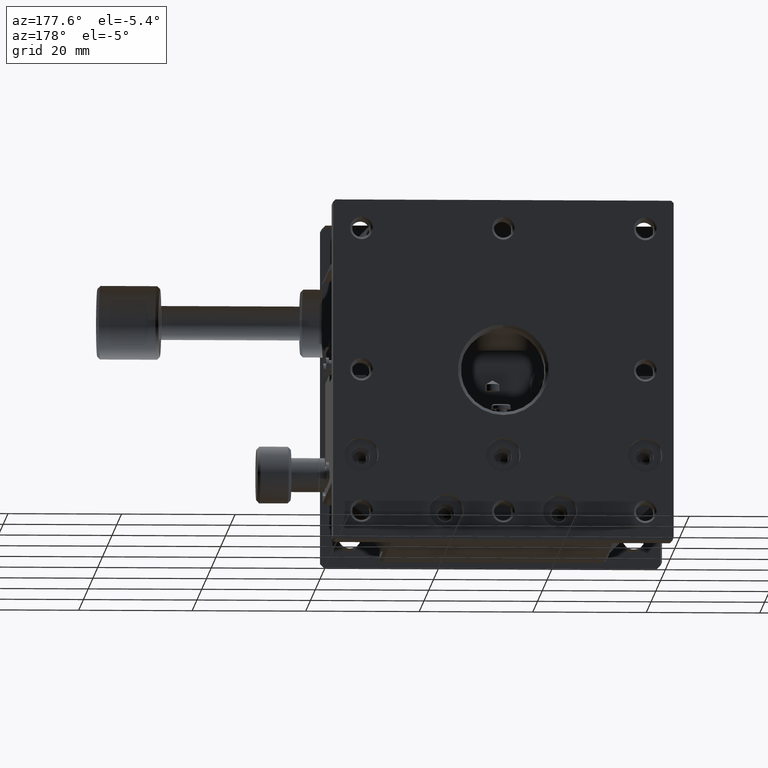
[diagram: clean part render]
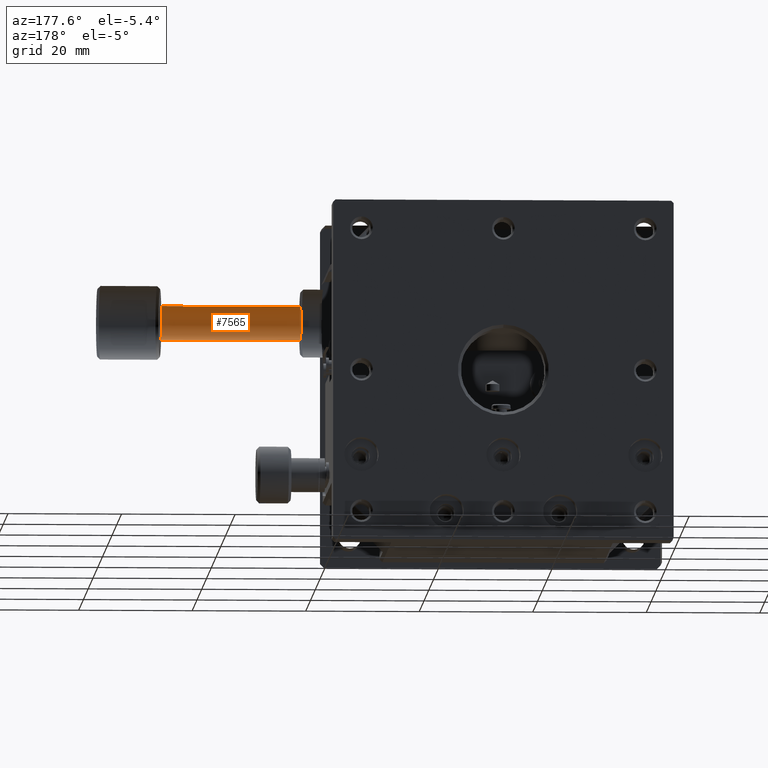
[diagram: same view with one face highlighted and labeled with its STEP entity id]
A machine part, auxiliary view. The second image highlights one B-rep face of the part: STEP entity #7565.
In plain terms, the highlighted cylindrical surface (bore or boss wall) has radius 3 mm, axis along (1, 0, 0).
Its self-contained STEP definition (entity closure, byte-faithful):
#743 = EDGE_CURVE ( 'NONE', #1166, #1166, #4738, .T. ) ;
#887 = EDGE_LOOP ( 'NONE', ( #6182 ) ) ;
#1166 = VERTEX_POINT ( 'NONE', #9215 ) ;
#2008 = CARTESIAN_POINT ( 'NONE',  ( 88.75000000000000000, 13.00000000000000178, -18.00000000000000355 ) ) ;
#2084 = EDGE_LOOP ( 'NONE', ( #5489 ) ) ;
#2421 = CYLINDRICAL_SURFACE ( 'NONE', #6562, 2.999999999999999112 ) ;
#2661 = VERTEX_POINT ( 'NONE', #7190 ) ;
#4012 = FACE_OUTER_BOUND ( 'NONE', #887, .T. ) ;
#4557 = CIRCLE ( 'NONE', #5666, 2.999999999999999112 ) ;
#4738 = CIRCLE ( 'NONE', #8680, 2.999999999999999112 ) ;
#5132 = DIRECTION ( 'NONE',  ( 1.000000000000000000, 0.000000000000000000, 0.000000000000000000 ) ) ;
#5489 = ORIENTED_EDGE ( 'NONE', *, *, #9463, .F. ) ;
#5666 = AXIS2_PLACEMENT_3D ( 'NONE', #8972, #10136, #11043 ) ;
#6182 = ORIENTED_EDGE ( 'NONE', *, *, #743, .F. ) ;
#6562 = AXIS2_PLACEMENT_3D ( 'NONE', #11378, #5132, #11206 ) ;
#7190 = CARTESIAN_POINT ( 'NONE',  ( 64.00000000000000000, 13.00000000000000178, -21.00000000000000000 ) ) ;
#7565 = ADVANCED_FACE ( 'NONE', ( #8650, #4012 ), #2421, .F. ) ;
#8650 = FACE_OUTER_BOUND ( 'NONE', #2084, .T. ) ;
#8680 = AXIS2_PLACEMENT_3D ( 'NONE', #2008, #10185, #9244 ) ;
#8972 = CARTESIAN_POINT ( 'NONE',  ( 64.00000000000000000, 13.00000000000000178, -18.00000000000000355 ) ) ;
#9215 = CARTESIAN_POINT ( 'NONE',  ( 88.75000000000000000, 13.00000000000000178, -21.00000000000000000 ) ) ;
#9244 = DIRECTION ( 'NONE',  ( 0.000000000000000000, 0.000000000000000000, -1.000000000000000000 ) ) ;
#9463 = EDGE_CURVE ( 'NONE', #2661, #2661, #4557, .T. ) ;
#10136 = DIRECTION ( 'NONE',  ( 1.000000000000000000, 0.000000000000000000, 0.000000000000000000 ) ) ;
#10185 = DIRECTION ( 'NONE',  ( -1.000000000000000000, -0.000000000000000000, -0.000000000000000000 ) ) ;
#11043 = DIRECTION ( 'NONE',  ( 0.000000000000000000, 0.000000000000000000, -1.000000000000000000 ) ) ;
#11206 = DIRECTION ( 'NONE',  ( 0.000000000000000000, 0.000000000000000000, -1.000000000000000000 ) ) ;
#11378 = CARTESIAN_POINT ( 'NONE',  ( 99.75000000000000000, 13.00000000000000178, -18.00000000000000355 ) ) ;